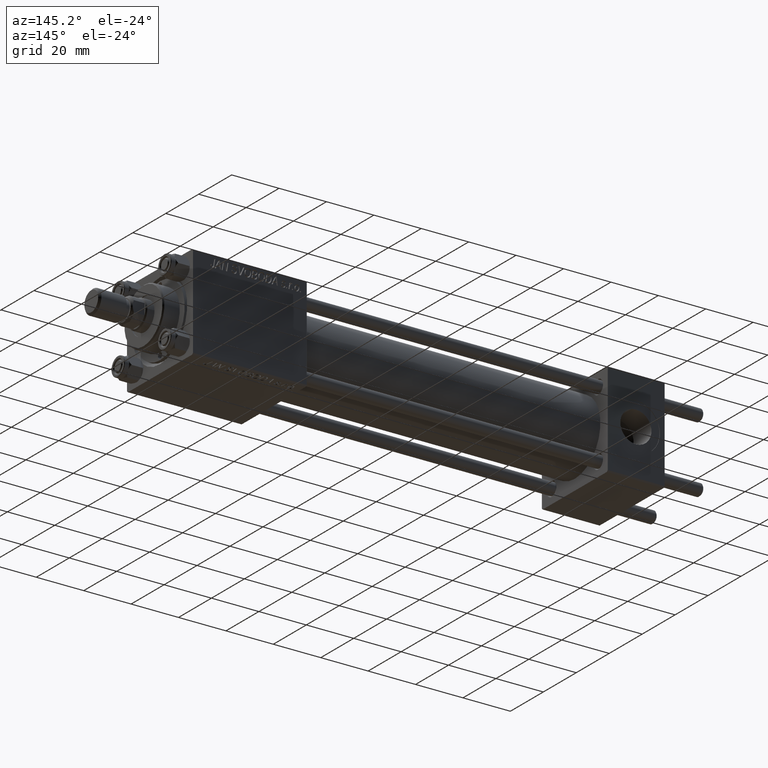
[diagram: clean part render]
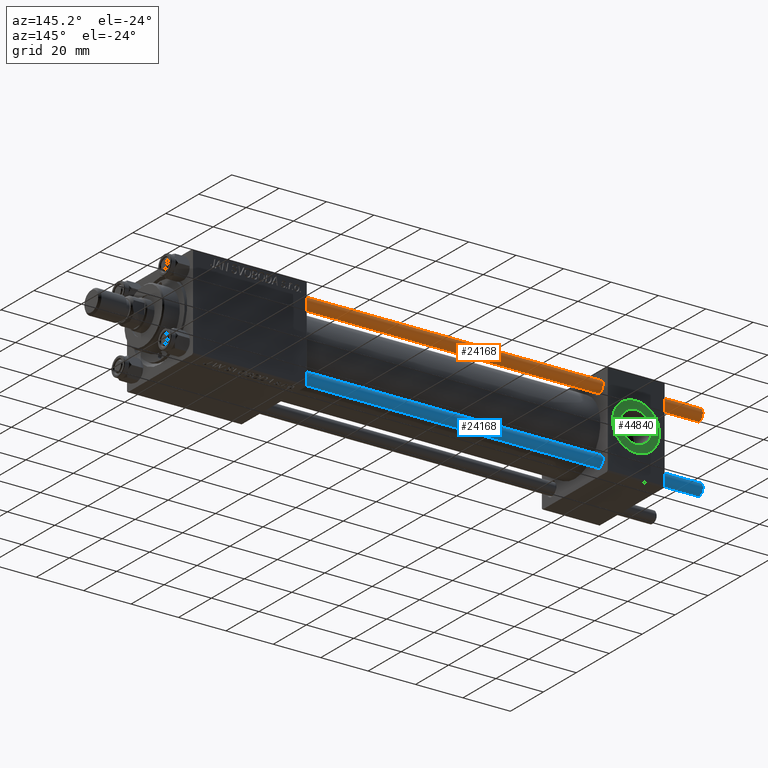
[diagram: same view with three faces highlighted in distinct colors, each labeled with its STEP entity id]
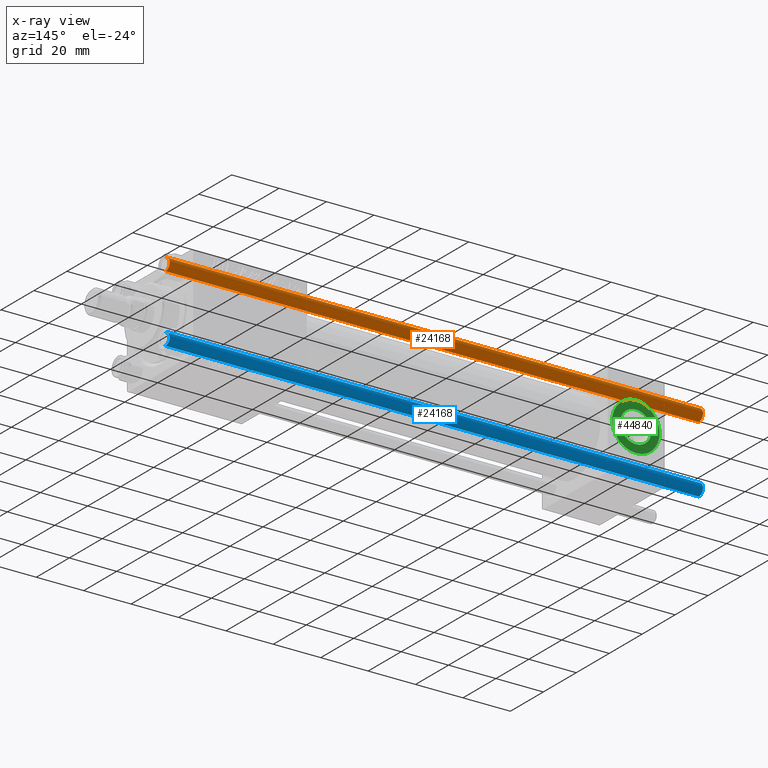
[diagram: x-ray of the same camera — body ghosted, the three highlighted faces saturated]
A machine part, auxiliary view with three faces highlighted in distinct colors.
The next image is the same camera in x-ray (body ghosted, the three faces saturated) — at least one of them is partly hidden behind the body in this view.
Their STEP definitions:

[orange] entity #24168 — the highlighted cylindrical surface (edge-blend (fillet) strip) has radius 2.5 mm, axis along (-1, -0, -0).
#281 = DIRECTION ( 'NONE',  ( 0.000000000000000000, 0.000000000000000000, -1.000000000000000000 ) ) ;
#1475 = LINE ( 'NONE', #17009, #14996 ) ;
#5722 = EDGE_CURVE ( 'NONE', #48951, #38379, #8073, .T. ) ;
#5907 = DIRECTION ( 'NONE',  ( -1.000000000000000000, 0.000000000000000000, 0.000000000000000000 ) ) ;
#8073 = LINE ( 'NONE', #33871, #13851 ) ;
#8155 = CIRCLE ( 'NONE', #38263, 2.500000000000000000 ) ;
#9218 = CYLINDRICAL_SURFACE ( 'NONE', #21637, 2.500000000000000000 ) ;
#9721 = FACE_OUTER_BOUND ( 'NONE', #42776, .T. ) ;
#9854 = CIRCLE ( 'NONE', #22036, 2.500000000000000000 ) ;
#10038 = EDGE_CURVE ( 'NONE', #18705, #48951, #8155, .T. ) ;
#10856 = VERTEX_POINT ( 'NONE', #25519 ) ;
#13851 = VECTOR ( 'NONE', #47315, 1000.000000000000000 ) ;
#14996 = VECTOR ( 'NONE', #38763, 1000.000000000000000 ) ;
#15284 = CARTESIAN_POINT ( 'NONE',  ( 2.500000000000000000, 3.061616997868383141E-16, 225.5000000000000284 ) ) ;
#16728 = ORIENTED_EDGE ( 'NONE', *, *, #39477, .T. ) ;
#17009 = CARTESIAN_POINT ( 'NONE',  ( -2.500000000000000000, 0.000000000000000000, 226.0000000000000000 ) ) ;
#18705 = VERTEX_POINT ( 'NONE', #32804 ) ;
#19450 = EDGE_CURVE ( 'NONE', #18705, #10856, #1475, .T. ) ;
#19541 = ORIENTED_EDGE ( 'NONE', *, *, #19450, .F. ) ;
#21338 = CARTESIAN_POINT ( 'NONE',  ( 0.000000000000000000, 0.000000000000000000, 0.4999999999999726885 ) ) ;
#21637 = AXIS2_PLACEMENT_3D ( 'NONE', #33413, #40277, #5907 ) ;
#22036 = AXIS2_PLACEMENT_3D ( 'NONE', #21338, #36629, #25417 ) ;
#22158 = ORIENTED_EDGE ( 'NONE', *, *, #5722, .T. ) ;
#22262 = ORIENTED_EDGE ( 'NONE', *, *, #10038, .T. ) ;
#24168 = ADVANCED_FACE ( 'NONE', ( #9721 ), #9218, .T. ) ;
#25417 = DIRECTION ( 'NONE',  ( 1.000000000000000000, 0.000000000000000000, 0.000000000000000000 ) ) ;
#25519 = CARTESIAN_POINT ( 'NONE',  ( -2.500000000000000000, 0.000000000000000000, 0.4999999999999726885 ) ) ;
#32804 = CARTESIAN_POINT ( 'NONE',  ( -2.500000000000000000, 0.000000000000000000, 225.5000000000000284 ) ) ;
#33413 = CARTESIAN_POINT ( 'NONE',  ( 0.000000000000000000, 0.000000000000000000, 226.0000000000000000 ) ) ;
#33871 = CARTESIAN_POINT ( 'NONE',  ( 2.500000000000000000, 3.061616997868383141E-16, 226.0000000000000000 ) ) ;
#34407 = DIRECTION ( 'NONE',  ( 1.000000000000000000, 0.000000000000000000, 0.000000000000000000 ) ) ;
#36629 = DIRECTION ( 'NONE',  ( -0.000000000000000000, -0.000000000000000000, 1.000000000000000000 ) ) ;
#38234 = CARTESIAN_POINT ( 'NONE',  ( 0.000000000000000000, 0.000000000000000000, 225.5000000000000284 ) ) ;
#38263 = AXIS2_PLACEMENT_3D ( 'NONE', #38234, #281, #34407 ) ;
#38379 = VERTEX_POINT ( 'NONE', #42773 ) ;
#38763 = DIRECTION ( 'NONE',  ( -0.000000000000000000, -0.000000000000000000, -1.000000000000000000 ) ) ;
#39477 = EDGE_CURVE ( 'NONE', #38379, #10856, #9854, .T. ) ;
#40277 = DIRECTION ( 'NONE',  ( -0.000000000000000000, -0.000000000000000000, -1.000000000000000000 ) ) ;
#42773 = CARTESIAN_POINT ( 'NONE',  ( 2.500000000000000000, 3.061616997868383141E-16, 0.4999999999999726885 ) ) ;
#42776 = EDGE_LOOP ( 'NONE', ( #22262, #22158, #16728, #19541 ) ) ;
#47315 = DIRECTION ( 'NONE',  ( -0.000000000000000000, -0.000000000000000000, -1.000000000000000000 ) ) ;
#48951 = VERTEX_POINT ( 'NONE', #15284 ) ;

[blue] entity #24168 — the highlighted cylindrical surface (edge-blend (fillet) strip) has radius 2.5 mm, axis along (1, 0, -0).
#281 = DIRECTION ( 'NONE',  ( 0.000000000000000000, 0.000000000000000000, -1.000000000000000000 ) ) ;
#1475 = LINE ( 'NONE', #17009, #14996 ) ;
#5722 = EDGE_CURVE ( 'NONE', #48951, #38379, #8073, .T. ) ;
#5907 = DIRECTION ( 'NONE',  ( -1.000000000000000000, 0.000000000000000000, 0.000000000000000000 ) ) ;
#8073 = LINE ( 'NONE', #33871, #13851 ) ;
#8155 = CIRCLE ( 'NONE', #38263, 2.500000000000000000 ) ;
#9218 = CYLINDRICAL_SURFACE ( 'NONE', #21637, 2.500000000000000000 ) ;
#9721 = FACE_OUTER_BOUND ( 'NONE', #42776, .T. ) ;
#9854 = CIRCLE ( 'NONE', #22036, 2.500000000000000000 ) ;
#10038 = EDGE_CURVE ( 'NONE', #18705, #48951, #8155, .T. ) ;
#10856 = VERTEX_POINT ( 'NONE', #25519 ) ;
#13851 = VECTOR ( 'NONE', #47315, 1000.000000000000000 ) ;
#14996 = VECTOR ( 'NONE', #38763, 1000.000000000000000 ) ;
#15284 = CARTESIAN_POINT ( 'NONE',  ( 2.500000000000000000, 3.061616997868383141E-16, 225.5000000000000284 ) ) ;
#16728 = ORIENTED_EDGE ( 'NONE', *, *, #39477, .T. ) ;
#17009 = CARTESIAN_POINT ( 'NONE',  ( -2.500000000000000000, 0.000000000000000000, 226.0000000000000000 ) ) ;
#18705 = VERTEX_POINT ( 'NONE', #32804 ) ;
#19450 = EDGE_CURVE ( 'NONE', #18705, #10856, #1475, .T. ) ;
#19541 = ORIENTED_EDGE ( 'NONE', *, *, #19450, .F. ) ;
#21338 = CARTESIAN_POINT ( 'NONE',  ( 0.000000000000000000, 0.000000000000000000, 0.4999999999999726885 ) ) ;
#21637 = AXIS2_PLACEMENT_3D ( 'NONE', #33413, #40277, #5907 ) ;
#22036 = AXIS2_PLACEMENT_3D ( 'NONE', #21338, #36629, #25417 ) ;
#22158 = ORIENTED_EDGE ( 'NONE', *, *, #5722, .T. ) ;
#22262 = ORIENTED_EDGE ( 'NONE', *, *, #10038, .T. ) ;
#24168 = ADVANCED_FACE ( 'NONE', ( #9721 ), #9218, .T. ) ;
#25417 = DIRECTION ( 'NONE',  ( 1.000000000000000000, 0.000000000000000000, 0.000000000000000000 ) ) ;
#25519 = CARTESIAN_POINT ( 'NONE',  ( -2.500000000000000000, 0.000000000000000000, 0.4999999999999726885 ) ) ;
#32804 = CARTESIAN_POINT ( 'NONE',  ( -2.500000000000000000, 0.000000000000000000, 225.5000000000000284 ) ) ;
#33413 = CARTESIAN_POINT ( 'NONE',  ( 0.000000000000000000, 0.000000000000000000, 226.0000000000000000 ) ) ;
#33871 = CARTESIAN_POINT ( 'NONE',  ( 2.500000000000000000, 3.061616997868383141E-16, 226.0000000000000000 ) ) ;
#34407 = DIRECTION ( 'NONE',  ( 1.000000000000000000, 0.000000000000000000, 0.000000000000000000 ) ) ;
#36629 = DIRECTION ( 'NONE',  ( -0.000000000000000000, -0.000000000000000000, 1.000000000000000000 ) ) ;
#38234 = CARTESIAN_POINT ( 'NONE',  ( 0.000000000000000000, 0.000000000000000000, 225.5000000000000284 ) ) ;
#38263 = AXIS2_PLACEMENT_3D ( 'NONE', #38234, #281, #34407 ) ;
#38379 = VERTEX_POINT ( 'NONE', #42773 ) ;
#38763 = DIRECTION ( 'NONE',  ( -0.000000000000000000, -0.000000000000000000, -1.000000000000000000 ) ) ;
#39477 = EDGE_CURVE ( 'NONE', #38379, #10856, #9854, .T. ) ;
#40277 = DIRECTION ( 'NONE',  ( -0.000000000000000000, -0.000000000000000000, -1.000000000000000000 ) ) ;
#42773 = CARTESIAN_POINT ( 'NONE',  ( 2.500000000000000000, 3.061616997868383141E-16, 0.4999999999999726885 ) ) ;
#42776 = EDGE_LOOP ( 'NONE', ( #22262, #22158, #16728, #19541 ) ) ;
#47315 = DIRECTION ( 'NONE',  ( -0.000000000000000000, -0.000000000000000000, -1.000000000000000000 ) ) ;
#48951 = VERTEX_POINT ( 'NONE', #15284 ) ;

[green] entity #44840 — the highlighted planar face has unit normal (0, 1, 0).
#1566 = EDGE_LOOP ( 'NONE', ( #47546, #39730 ) ) ;
#2830 = EDGE_CURVE ( 'NONE', #12965, #35870, #43041, .T. ) ;
#3473 = CARTESIAN_POINT ( 'NONE',  ( 12.00000000000000000, 19.80000000000000071, -6.579999999999998295 ) ) ;
#5036 = CARTESIAN_POINT ( 'NONE',  ( 12.00000000000000000, 19.80000000000000071, 0.000000000000000000 ) ) ;
#5200 = DIRECTION ( 'NONE',  ( 0.000000000000000000, 1.000000000000000000, 0.000000000000000000 ) ) ;
#5536 = FACE_OUTER_BOUND ( 'NONE', #17461, .T. ) ;
#5881 = ORIENTED_EDGE ( 'NONE', *, *, #25378, .T. ) ;
#6044 = PLANE ( 'NONE',  #26292 ) ;
#6804 = DIRECTION ( 'NONE',  ( 0.000000000000000000, 1.000000000000000000, 0.000000000000000000 ) ) ;
#7257 = DIRECTION ( 'NONE',  ( 0.000000000000000000, 1.000000000000000000, 0.000000000000000000 ) ) ;
#7398 = CARTESIAN_POINT ( 'NONE',  ( 12.00000000000000000, 19.80000000000000071, 0.000000000000000000 ) ) ;
#8612 = DIRECTION ( 'NONE',  ( 0.000000000000000000, 1.000000000000000000, 0.000000000000000000 ) ) ;
#10320 = CIRCLE ( 'NONE', #33881, 6.579999999999998295 ) ;
#10845 = CARTESIAN_POINT ( 'NONE',  ( 12.00000000000000000, 19.80000000000000071, 0.000000000000000000 ) ) ;
#11609 = ORIENTED_EDGE ( 'NONE', *, *, #2830, .T. ) ;
#12965 = VERTEX_POINT ( 'NONE', #29747 ) ;
#13564 = AXIS2_PLACEMENT_3D ( 'NONE', #34861, #8612, #27730 ) ;
#14124 = EDGE_CURVE ( 'NONE', #33857, #46568, #16435, .T. ) ;
#16435 = CIRCLE ( 'NONE', #36762, 6.579999999999998295 ) ;
#17461 = EDGE_LOOP ( 'NONE', ( #11609, #5881 ) ) ;
#18675 = DIRECTION ( 'NONE',  ( 0.000000000000000000, 0.000000000000000000, 1.000000000000000000 ) ) ;
#21572 = DIRECTION ( 'NONE',  ( 0.000000000000000000, -0.000000000000000000, 1.000000000000000000 ) ) ;
#23046 = DIRECTION ( 'NONE',  ( 0.000000000000000000, 0.000000000000000000, 1.000000000000000000 ) ) ;
#25378 = EDGE_CURVE ( 'NONE', #35870, #12965, #41193, .T. ) ;
#26292 = AXIS2_PLACEMENT_3D ( 'NONE', #5036, #6804, #21572 ) ;
#27730 = DIRECTION ( 'NONE',  ( 0.000000000000000000, 0.000000000000000000, 1.000000000000000000 ) ) ;
#28720 = FACE_BOUND ( 'NONE', #1566, .T. ) ;
#29747 = CARTESIAN_POINT ( 'NONE',  ( 12.00000000000000000, 19.80000000000000071, 10.00000000000000000 ) ) ;
#33857 = VERTEX_POINT ( 'NONE', #49860 ) ;
#33881 = AXIS2_PLACEMENT_3D ( 'NONE', #7398, #49466, #46132 ) ;
#34704 = CARTESIAN_POINT ( 'NONE',  ( 12.00000000000000178, 19.80000000000000071, -10.00000000000000000 ) ) ;
#34861 = CARTESIAN_POINT ( 'NONE',  ( 12.00000000000000000, 19.80000000000000071, 0.000000000000000000 ) ) ;
#35870 = VERTEX_POINT ( 'NONE', #34704 ) ;
#36762 = AXIS2_PLACEMENT_3D ( 'NONE', #10845, #7257, #23046 ) ;
#39730 = ORIENTED_EDGE ( 'NONE', *, *, #48945, .F. ) ;
#40093 = CARTESIAN_POINT ( 'NONE',  ( 12.00000000000000000, 19.80000000000000071, 0.000000000000000000 ) ) ;
#41193 = CIRCLE ( 'NONE', #13564, 10.00000000000000000 ) ;
#43041 = CIRCLE ( 'NONE', #50401, 10.00000000000000000 ) ;
#44840 = ADVANCED_FACE ( 'NONE', ( #28720, #5536 ), #6044, .T. ) ;
#46132 = DIRECTION ( 'NONE',  ( 0.000000000000000000, 0.000000000000000000, 1.000000000000000000 ) ) ;
#46568 = VERTEX_POINT ( 'NONE', #3473 ) ;
#47546 = ORIENTED_EDGE ( 'NONE', *, *, #14124, .F. ) ;
#48945 = EDGE_CURVE ( 'NONE', #46568, #33857, #10320, .T. ) ;
#49466 = DIRECTION ( 'NONE',  ( 0.000000000000000000, 1.000000000000000000, 0.000000000000000000 ) ) ;
#49860 = CARTESIAN_POINT ( 'NONE',  ( 12.00000000000000000, 19.80000000000000071, 6.579999999999998295 ) ) ;
#50401 = AXIS2_PLACEMENT_3D ( 'NONE', #40093, #5200, #18675 ) ;